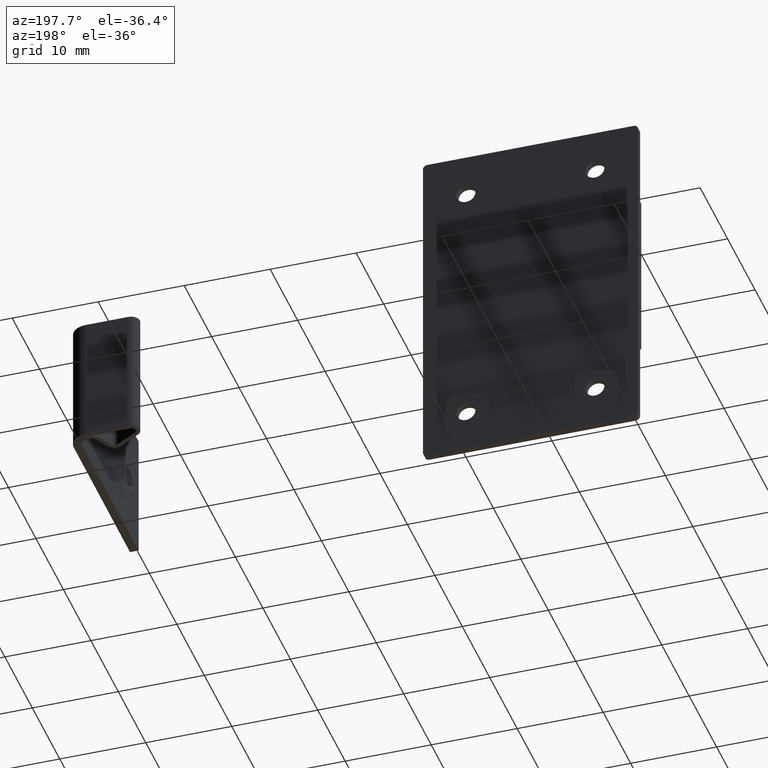
[diagram: clean part render]
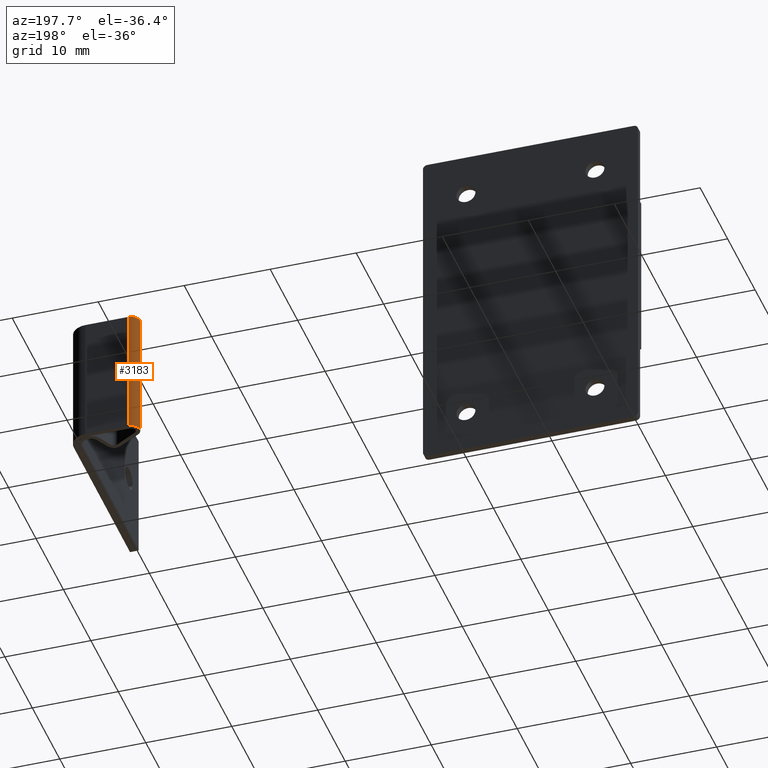
[diagram: same view with one face highlighted and labeled with its STEP entity id]
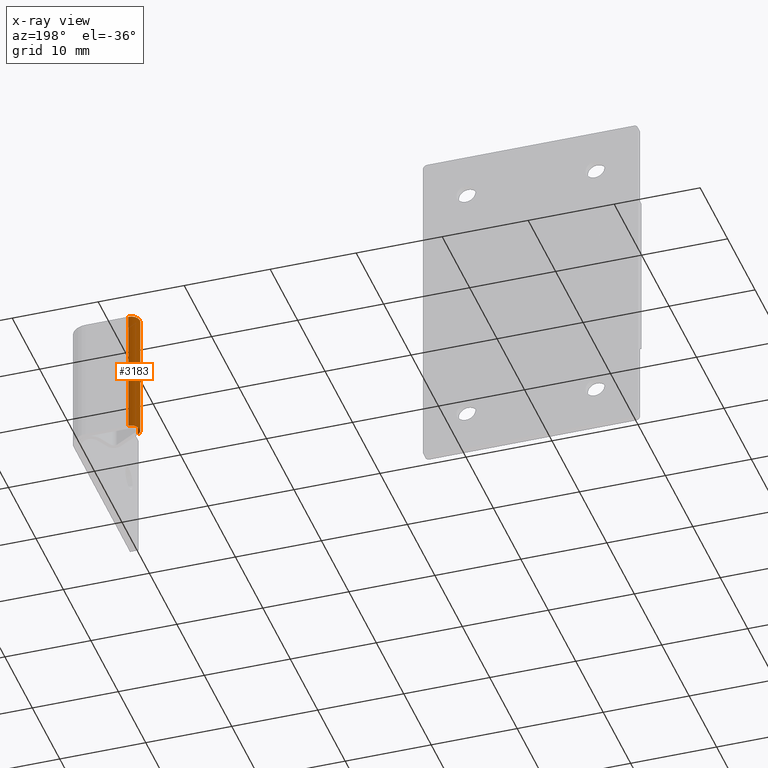
[diagram: x-ray of the same camera — body ghosted, the highlighted face saturated]
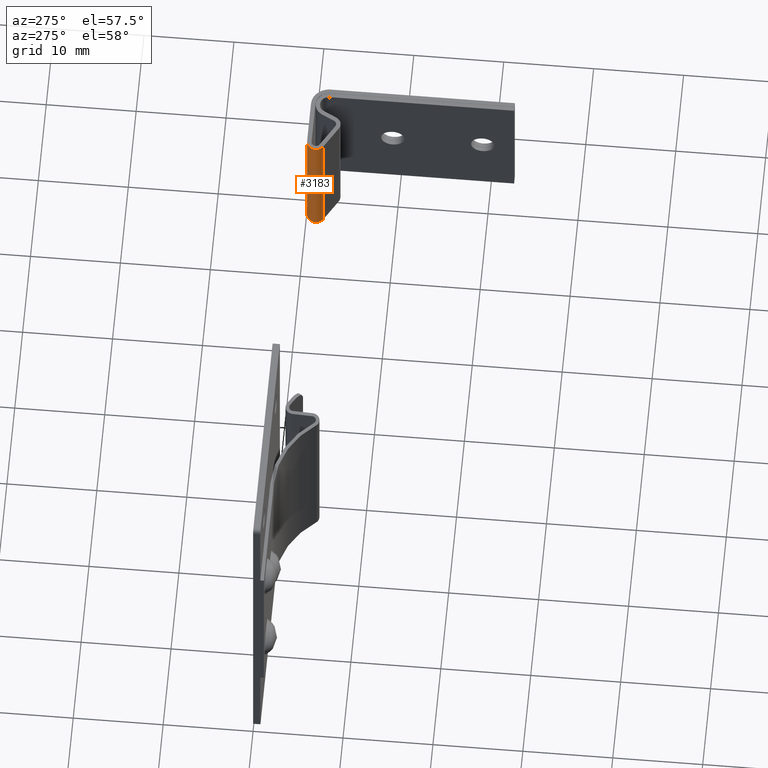
[diagram: same view with one face highlighted and labeled with its STEP entity id]
A machine part, auxiliary view. The second image highlights one B-rep face of the part: STEP entity #3183.
The next image is the same camera in x-ray: the body ghosted, the highlighted face saturated — about 0% of this face is hidden behind the body in this view.
A second angle (auxiliary view) of the same face is appended — the face is thin or edge-on in the first view.
In plain terms, the highlighted face is a freeform B-spline surface patch.
Its self-contained STEP definition (entity closure, byte-faithful):
#2593=CARTESIAN_POINT('',(56.669917074853998,-7.000013701684500,7.500000000000170));
#2594=VERTEX_POINT('',#2593);
#2600=CARTESIAN_POINT('',(58.527410454527804,-7.514508700509111,7.500000000000170));
#2601=VERTEX_POINT('',#2600);
#2602=CARTESIAN_POINT('',(58.527410454527832,-7.514508700509127,7.500000000000170));
#2603=CARTESIAN_POINT('',(58.136050761389342,-8.166776160259152,7.500000000000170));
#2604=CARTESIAN_POINT('',(57.402983918121670,-7.963728747658627,7.500000000000170));
#2605=CARTESIAN_POINT('',(56.669917074853998,-7.760681335058101,7.500000000000170));
#2606=CARTESIAN_POINT('',(56.669917074853998,-7.000013701684500,7.500000000000170));
#2614=(BOUNDED_CURVE()B_SPLINE_CURVE(2,(#2602,#2603,#2604,#2605,#2606),.UNSPECIFIED.,.F.,.U.)B_SPLINE_CURVE_WITH_KNOTS((3,2,3),(0.0,0.500000000000000,1.0),.UNSPECIFIED.)CURVE()GEOMETRIC_REPRESENTATION_ITEM()RATIONAL_B_SPLINE_CURVE((1.0,0.795906136655676,1.0,0.795906136655676,1.0))REPRESENTATION_ITEM(''));
#2615=EDGE_CURVE('',#2601,#2594,#2614,.T.);
#2773=CARTESIAN_POINT('',(58.527410454527804,-7.514508700509111,-7.500000000000000));
#2774=VERTEX_POINT('',#2773);
#2780=CARTESIAN_POINT('',(56.669917074853998,-7.000013701684500,-7.500000000000000));
#2781=VERTEX_POINT('',#2780);
#2782=CARTESIAN_POINT('',(58.527410454527832,-7.514508700509127,-7.500000000000000));
#2783=CARTESIAN_POINT('',(58.136050761389342,-8.166776160259152,-7.500000000000000));
#2784=CARTESIAN_POINT('',(57.402983918121670,-7.963728747658627,-7.500000000000000));
#2785=CARTESIAN_POINT('',(56.669917074853998,-7.760681335058101,-7.500000000000000));
#2786=CARTESIAN_POINT('',(56.669917074853998,-7.000013701684500,-7.500000000000000));
#2794=(BOUNDED_CURVE()B_SPLINE_CURVE(2,(#2782,#2783,#2784,#2785,#2786),.UNSPECIFIED.,.F.,.U.)B_SPLINE_CURVE_WITH_KNOTS((3,2,3),(0.0,0.500000000000000,1.0),.UNSPECIFIED.)CURVE()GEOMETRIC_REPRESENTATION_ITEM()RATIONAL_B_SPLINE_CURVE((1.0,0.795906136655676,1.0,0.795906136655676,1.0))REPRESENTATION_ITEM(''));
#2795=EDGE_CURVE('',#2774,#2781,#2794,.T.);
#3147=CARTESIAN_POINT('',(56.669917074853998,-7.000013701684500,-7.500000000000000));
#3148=CARTESIAN_POINT('',(56.669917074853998,-7.000013701684500,7.500000000000170));
#3149=QUASI_UNIFORM_CURVE('',1,(#3147,#3148),.UNSPECIFIED.,.F.,.U.);
#3150=EDGE_CURVE('',#2781,#2594,#3149,.T.);
#3155=CARTESIAN_POINT('',(58.540584521951878,-7.491885836048764,-7.875000000000005));
#3156=CARTESIAN_POINT('',(58.540584521951878,-7.491885836048764,7.884375000000175));
#3157=CARTESIAN_POINT('',(58.149331759870464,-8.184445994943914,-7.875000000000005));
#3158=CARTESIAN_POINT('',(58.149331759870464,-8.184445994943914,7.884375000000175));
#3159=CARTESIAN_POINT('',(57.386509151634982,-7.959013153747272,-7.875000000000005));
#3160=CARTESIAN_POINT('',(57.386509151634982,-7.959013153747272,7.884375000000175));
#3161=CARTESIAN_POINT('',(56.623686543399472,-7.733580312550628,-7.875000000000005));
#3162=CARTESIAN_POINT('',(56.623686543399472,-7.733580312550628,7.884375000000175));
#3163=CARTESIAN_POINT('',(56.671743805481050,-6.939597443033648,-7.875000000000005));
#3164=CARTESIAN_POINT('',(56.671743805481050,-6.939597443033648,7.884375000000175));
#3172=(BOUNDED_SURFACE()B_SPLINE_SURFACE(1,2,((#3155,#3157,#3159,#3161,#3163),(#3156,#3158,#3160,#3162,#3164)),.UNSPECIFIED.,.F.,.F.,.U.)B_SPLINE_SURFACE_WITH_KNOTS((2,2),(3,2,3),(0.0,15.759375000000180),(0.0,1.0,2.0),.UNSPECIFIED.)GEOMETRIC_REPRESENTATION_ITEM()RATIONAL_B_SPLINE_SURFACE(((1.0,0.782608156852414,1.0,0.782608156852414,1.0),(1.0,0.782608156852414,1.0,0.782608156852414,1.0)))REPRESENTATION_ITEM('')SURFACE());
#3173=ORIENTED_EDGE('',*,*,#2615,.T.);
#3174=ORIENTED_EDGE('',*,*,#3150,.F.);
#3175=ORIENTED_EDGE('',*,*,#2795,.F.);
#3176=CARTESIAN_POINT('',(58.527410454527804,-7.514508700509111,-7.500000000000000));
#3177=CARTESIAN_POINT('',(58.527410454527804,-7.514508700509111,7.500000000000170));
#3178=QUASI_UNIFORM_CURVE('',1,(#3176,#3177),.UNSPECIFIED.,.F.,.U.);
#3179=EDGE_CURVE('',#2774,#2601,#3178,.T.);
#3180=ORIENTED_EDGE('',*,*,#3179,.T.);
#3181=EDGE_LOOP('',(#3173,#3174,#3175,#3180));
#3182=FACE_OUTER_BOUND('',#3181,.T.);
#3183=ADVANCED_FACE('',(#3182),#3172,.T.);